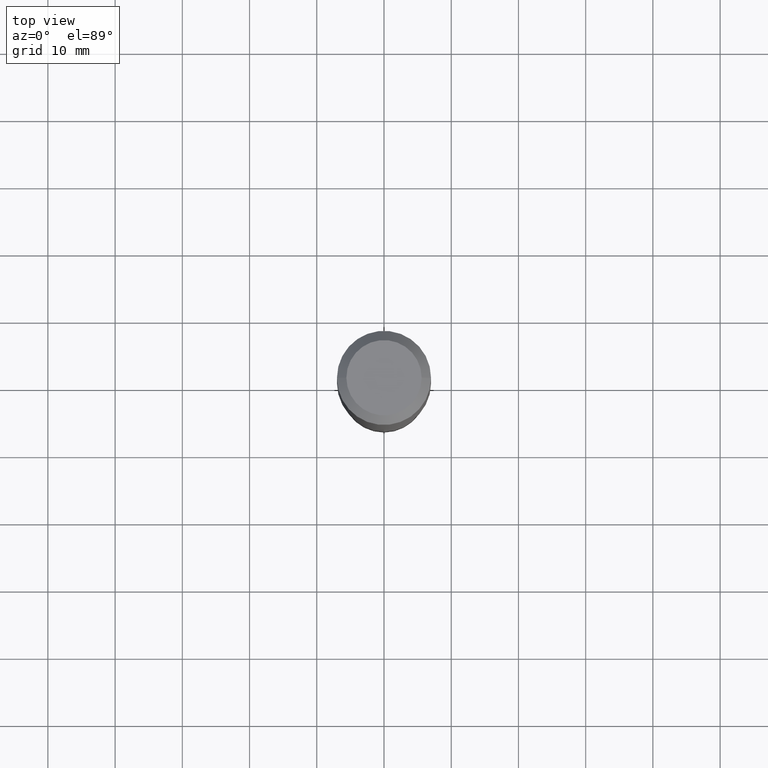
[diagram: clean part render]
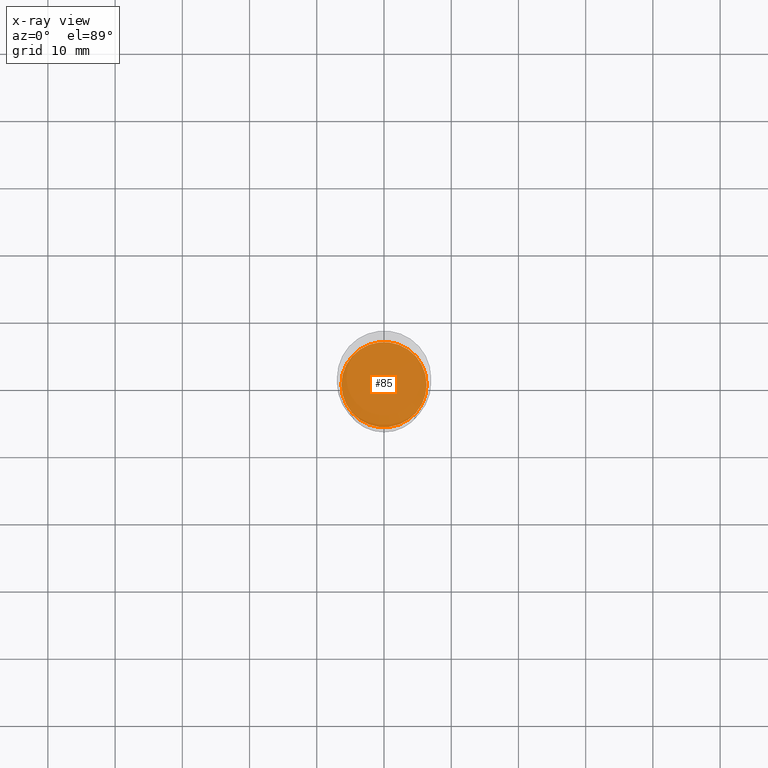
[diagram: x-ray — body ghosted, one internal face saturated and labeled with its STEP entity id]
A machine part, top view, then the same camera in x-ray: the body is ghosted and one INTERNAL B-rep face — a face not visible from any outside direction — is saturated and labeled: STEP entity #85.
In plain terms, the highlighted planar face has unit normal (-0, 0, 1).
Its self-contained STEP definition (entity closure, byte-faithful):
#2 = CIRCLE ( 'NONE', #460, 0.2494999999999999996 ) ;
#9 = EDGE_LOOP ( 'NONE', ( #283, #389 ) ) ;
#29 = VERTEX_POINT ( 'NONE', #35 ) ;
#35 = CARTESIAN_POINT ( 'NONE',  ( -0.2494999999999999996, -6.430924385921369008E-15, -2.350400000000000045 ) ) ;
#40 = VERTEX_POINT ( 'NONE', #73 ) ;
#73 = CARTESIAN_POINT ( 'NONE',  ( 0.2494999999999999996, -9.948626926899652657E-15, -2.350400000000000045 ) ) ;
#82 = FACE_OUTER_BOUND ( 'NONE', #9, .T. ) ;
#85 = ADVANCED_FACE ( 'NONE', ( #82 ), #113, .F. ) ;
#113 = PLANE ( 'NONE',  #164 ) ;
#131 = EDGE_CURVE ( 'NONE', #40, #29, #368, .T. ) ;
#150 = CARTESIAN_POINT ( 'NONE',  ( 5.747829882057544571E-29, -8.206377738816928987E-15, -2.350400000000000045 ) ) ;
#164 = AXIS2_PLACEMENT_3D ( 'NONE', #374, #265, #236 ) ;
#214 = DIRECTION ( 'NONE',  ( 1.000000000000000000, -6.982962677686269077E-15, 0.000000000000000000 ) ) ;
#236 = DIRECTION ( 'NONE',  ( 1.000000000000000000, -6.982962677686265922E-15, 4.876176775795935793E-29 ) ) ;
#265 = DIRECTION ( 'NONE',  ( -2.438088387897960049E-29, 3.491481338843145188E-15, 1.000000000000000000 ) ) ;
#283 = ORIENTED_EDGE ( 'NONE', *, *, #131, .F. ) ;
#299 = EDGE_CURVE ( 'NONE', #29, #40, #2, .T. ) ;
#305 = DIRECTION ( 'NONE',  ( 1.000000000000000000, -6.982962677686269077E-15, 0.000000000000000000 ) ) ;
#328 = CARTESIAN_POINT ( 'NONE',  ( 5.747829882057544571E-29, -8.206377738816928987E-15, -2.350400000000000045 ) ) ;
#344 = AXIS2_PLACEMENT_3D ( 'NONE', #150, #414, #305 ) ;
#368 = CIRCLE ( 'NONE', #344, 0.2494999999999999996 ) ;
#374 = CARTESIAN_POINT ( 'NONE',  ( 7.544910167511496046E-29, -5.632856486589080252E-15, -2.350400000000000045 ) ) ;
#389 = ORIENTED_EDGE ( 'NONE', *, *, #299, .F. ) ;
#414 = DIRECTION ( 'NONE',  ( -2.445468806185136597E-29, 3.491481338843145583E-15, 1.000000000000000000 ) ) ;
#437 = DIRECTION ( 'NONE',  ( -2.445468806185136597E-29, 3.491481338843145583E-15, 1.000000000000000000 ) ) ;
#460 = AXIS2_PLACEMENT_3D ( 'NONE', #328, #437, #214 ) ;